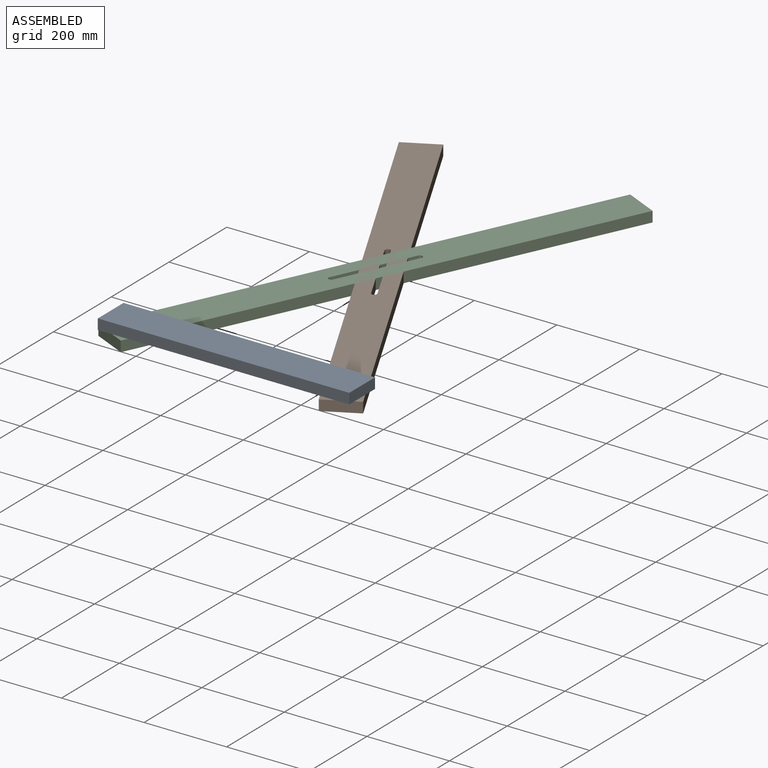
[diagram: assembled view]
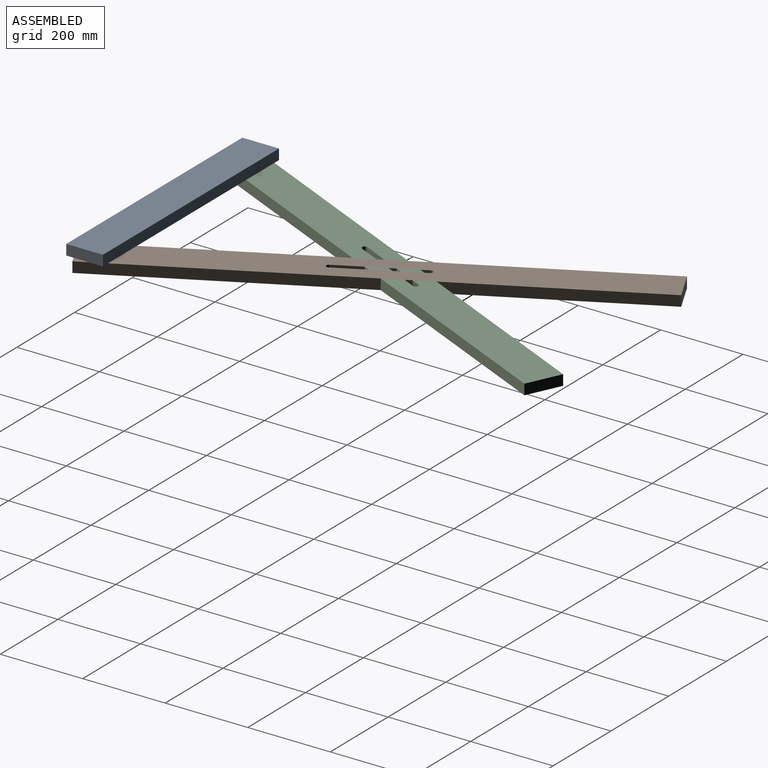
[diagram: assembled view, second angle]
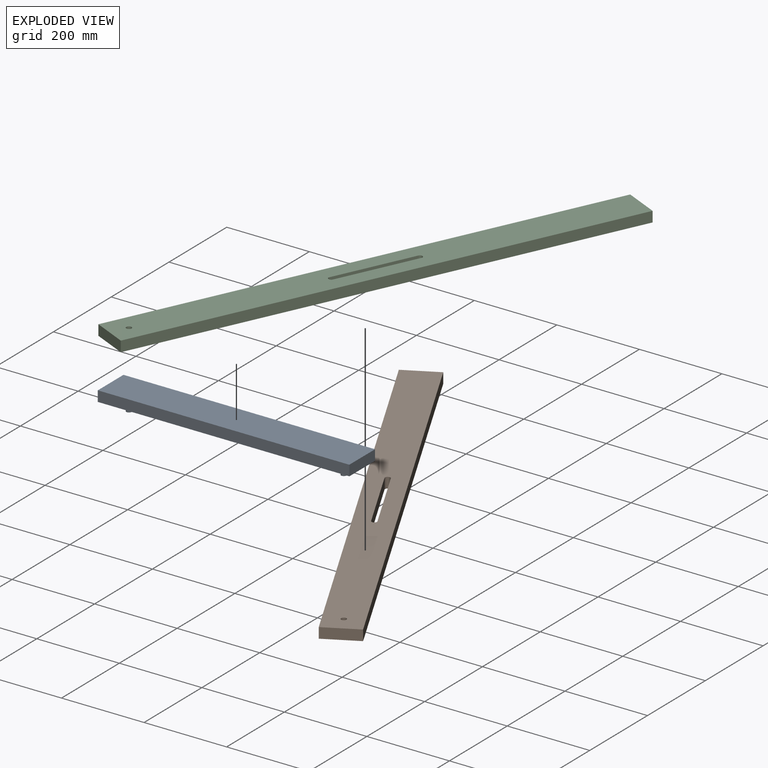
[diagram: exploded view]
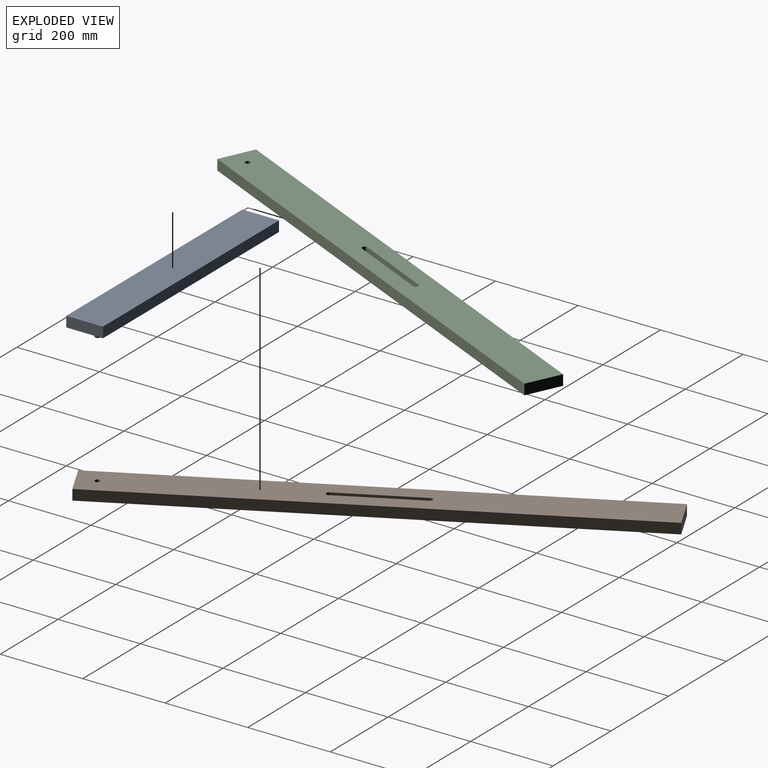
[diagram: exploded view, second angle]
ASSEMBLY  parts=3 mates=2
PART A: 10 faces, bbox 609.6x88.9x50.8 mm
  f0: plane 88.9x25.4mm, normal (1,0,0), area 2258.1mm2, adj f1,f3,f4,f5
  f1: plane 609.6x25.4mm, normal (0,1,0), area 15483.8mm2, adj f0,f2,f4,f5
  f2: plane 88.9x25.4mm, normal (-1,0,0), area 2258.1mm2, adj f1,f3,f4,f5
  f3: plane 609.6x25.4mm, normal (0,-1,0), area 15483.8mm2, adj f0,f2,f4,f5
  f4: plane 609.6x88.9mm, normal (0,0,1), area 54193.4mm2, adj f0,f1,f2,f3
  f5: plane 609.6x88.9mm, normal (0,0,-1), area 53940.1mm2, adj f0,f1,f2,f3,f6,f8
  f6: cylinder r=6.35mm len=25.4mm, axis (0,0,1), area 1013.4mm2, adj f5,f7
  f7: plane 12.7x12.7mm, normal (0,0,-1), area 126.7mm2, adj f6
  f8: cylinder r=6.35mm len=25.4mm, axis (0,0,1), area 1013.4mm2, adj f5,f9
  f9: plane 12.7x12.7mm, normal (0,0,-1), area 126.7mm2, adj f8
PART B: 11 faces, bbox 88.9x1219.2x25.4 mm
  f0: cylinder r=6.35mm len=25.4mm, axis (0,0,-1), area 506.7mm2, adj f1,f8,f9,f10
  f1: plane 203.2x25.4mm, normal (-1,0,0), area 5161.3mm2, adj f0,f2,f9,f10
  f2: cylinder r=6.35mm len=25.4mm, axis (0,0,-1), area 506.7mm2, adj f1,f8,f9,f10
  f3: plane 88.9x25.4mm, normal (0,1,0), area 2258.1mm2, adj f4,f7,f9,f10
  f4: plane 1219.2x25.4mm, normal (-1,0,0), area 30967.7mm2, adj f3,f5,f9,f10
  f5: plane 88.9x25.4mm, normal (0,-1,0), area 2258.1mm2, adj f4,f7,f9,f10
  f6: cylinder r=6.35mm len=25.4mm, axis (0,0,-1), area 1013.4mm2, adj f9,f10
  f7: plane 1219.2x25.4mm, normal (1,0,0), area 30967.7mm2, adj f3,f5,f9,f10
  f8: plane 203.2x25.4mm, normal (1,0,0), area 5161.3mm2, adj f0,f2,f9,f10
  f9: plane 1219.2x88.9mm, normal (0,0,1), area 105552.9mm2, adj f0,f1,f2,f3,f4,f5,f6,f7
  f10: plane 1219.2x88.9mm, normal (0,0,-1), area 105552.9mm2, adj f0,f1,f2,f3,f4,f5,f6,f7
PART C: same geometry as B
PLACE A t=(41.1,-53.35,162.07)mm
PLACE B rot(axis=(0,0,1),27.5deg) t=(40.47,447.93,136.67)mm
PLACE C rot(axis=(0,0,-1),25deg) t=(19.6,458.85,136.67)mm
MATE revolute B.f6 <-> A.f8  axis (0,0,-1) through (301.45,-53.35,136.67)mm
MATE revolute C.f6 <-> A.f6  axis (0,0,-1) through (-219.25,-53.35,136.67)mm
